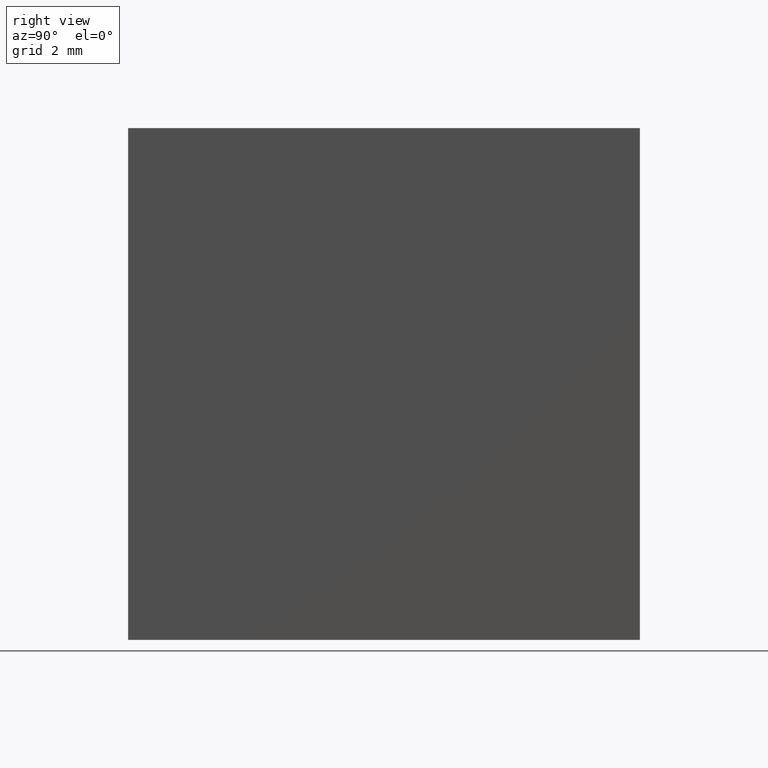
[diagram: clean part render]
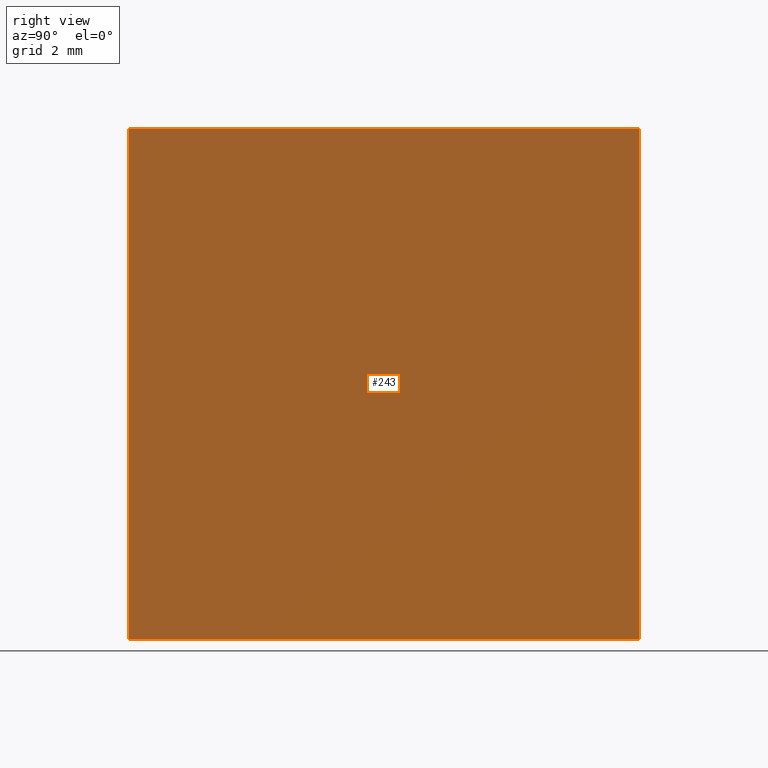
[diagram: same view with one face highlighted and labeled with its STEP entity id]
A machine part, right view. The second image highlights one B-rep face of the part: STEP entity #243.
In plain terms, the highlighted planar face has unit normal (-1, 0, 0).
Its self-contained STEP definition (entity closure, byte-faithful):
#18 = CARTESIAN_POINT ( 'NONE',  ( -153.0193858844757244, 5.000000000000000000, 0.000000000000000000 ) ) ;
#21 = CARTESIAN_POINT ( 'NONE',  ( -153.0193858844757244, 5.000000000000000000, 10.00000000000000000 ) ) ;
#22 = VECTOR ( 'NONE', #105, 1000.000000000000000 ) ;
#24 = FACE_OUTER_BOUND ( 'NONE', #30, .T. ) ;
#30 = EDGE_LOOP ( 'NONE', ( #172, #69, #91, #234 ) ) ;
#37 = LINE ( 'NONE', #18, #106 ) ;
#43 = LINE ( 'NONE', #249, #22 ) ;
#54 = DIRECTION ( 'NONE',  ( -0.000000000000000000, 1.000000000000000000, -0.000000000000000000 ) ) ;
#61 = DIRECTION ( 'NONE',  ( -0.000000000000000000, -0.000000000000000000, -1.000000000000000000 ) ) ;
#64 = CARTESIAN_POINT ( 'NONE',  ( -153.0193858844757244, 5.000000000000000000, 10.00000000000000000 ) ) ;
#69 = ORIENTED_EDGE ( 'NONE', *, *, #251, .F. ) ;
#73 = VECTOR ( 'NONE', #220, 1000.000000000000000 ) ;
#80 = CARTESIAN_POINT ( 'NONE',  ( -153.0193858844757244, 5.000000000000000000, 0.000000000000000000 ) ) ;
#91 = ORIENTED_EDGE ( 'NONE', *, *, #268, .F. ) ;
#104 = LINE ( 'NONE', #212, #242 ) ;
#105 = DIRECTION ( 'NONE',  ( -0.000000000000000000, 1.000000000000000000, -0.000000000000000000 ) ) ;
#106 = VECTOR ( 'NONE', #54, 1000.000000000000000 ) ;
#122 = PLANE ( 'NONE',  #218 ) ;
#131 = EDGE_CURVE ( 'NONE', #219, #153, #198, .T. ) ;
#145 = DIRECTION ( 'NONE',  ( -1.000000000000000000, 0.000000000000000000, 0.000000000000000000 ) ) ;
#153 = VERTEX_POINT ( 'NONE', #161 ) ;
#161 = CARTESIAN_POINT ( 'NONE',  ( -153.0193858844757244, -5.000000000000000000, 0.000000000000000000 ) ) ;
#172 = ORIENTED_EDGE ( 'NONE', *, *, #177, .T. ) ;
#177 = EDGE_CURVE ( 'NONE', #153, #214, #37, .T. ) ;
#198 = LINE ( 'NONE', #205, #73 ) ;
#205 = CARTESIAN_POINT ( 'NONE',  ( -153.0193858844757244, -5.000000000000000000, 10.00000000000000000 ) ) ;
#207 = CARTESIAN_POINT ( 'NONE',  ( -153.0193858844757244, -5.000000000000000000, 10.00000000000000000 ) ) ;
#212 = CARTESIAN_POINT ( 'NONE',  ( -153.0193858844757244, 5.000000000000000000, 10.00000000000000000 ) ) ;
#214 = VERTEX_POINT ( 'NONE', #80 ) ;
#218 = AXIS2_PLACEMENT_3D ( 'NONE', #64, #145, #230 ) ;
#219 = VERTEX_POINT ( 'NONE', #207 ) ;
#220 = DIRECTION ( 'NONE',  ( -0.000000000000000000, -0.000000000000000000, -1.000000000000000000 ) ) ;
#230 = DIRECTION ( 'NONE',  ( 0.000000000000000000, 0.000000000000000000, 1.000000000000000000 ) ) ;
#233 = VERTEX_POINT ( 'NONE', #21 ) ;
#234 = ORIENTED_EDGE ( 'NONE', *, *, #131, .T. ) ;
#242 = VECTOR ( 'NONE', #61, 1000.000000000000000 ) ;
#243 = ADVANCED_FACE ( 'NONE', ( #24 ), #122, .F. ) ;
#249 = CARTESIAN_POINT ( 'NONE',  ( -153.0193858844757244, 5.000000000000000000, 10.00000000000000000 ) ) ;
#251 = EDGE_CURVE ( 'NONE', #233, #214, #104, .T. ) ;
#268 = EDGE_CURVE ( 'NONE', #219, #233, #43, .T. ) ;